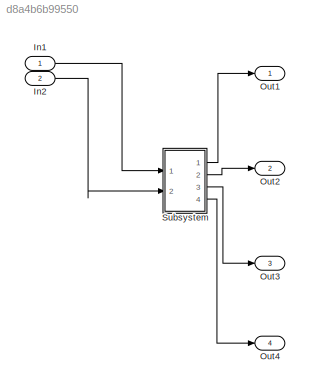
MODEL slx_d8a4b6b99550
KIND model
CONFIG AbsTol = auto
CONFIG EnableMultiTasking = off
CONFIG FixedStep = auto
CONFIG MaxStep = auto
CONFIG MinStep = auto
CONFIG RelTol = 1e-3
CONFIG SampleTimeConstraint = Unconstrained
CONFIG Solver = VariableStepAuto
CONFIG SolverName = VariableStepAuto
CONFIG StartTime = 0.0
CONFIG StopTime = 10.0
BLOCK [Inport] In1
  IconDisplay = Port number
BLOCK [Inport] In2
  IconDisplay = Port number
  Port = 2
BLOCK [Outport] Out1
  IconDisplay = Port number
BLOCK [Outport] Out2
  IconDisplay = Port number
  Port = 2
BLOCK [Outport] Out3
  IconDisplay = Port number
  Port = 3
BLOCK [Outport] Out4
  IconDisplay = Port number
  Port = 4
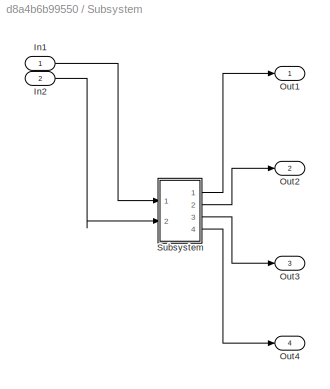
BLOCK [SubSystem] Subsystem
  Ports = [2, 4]
  RequestExecContextInheritance = off
BLOCK [Inport] Subsystem/In1
  IconDisplay = Port number
BLOCK [Inport] Subsystem/In2
  IconDisplay = Port number
  Port = 2
BLOCK [Outport] Subsystem/Out1
  IconDisplay = Port number
BLOCK [Outport] Subsystem/Out2
  IconDisplay = Port number
  Port = 2
BLOCK [Outport] Subsystem/Out3
  IconDisplay = Port number
  Port = 3
BLOCK [Outport] Subsystem/Out4
  IconDisplay = Port number
  Port = 4
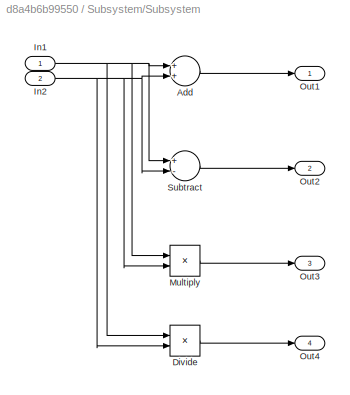
BLOCK [SubSystem] Subsystem/Subsystem
  Ports = [2, 4]
  RequestExecContextInheritance = off
BLOCK [Sum] Subsystem/Subsystem/Add
  InputSameDT = off
  OutDataTypeStr = Inherit: Inherit via internal rule
  Ports = [2, 1]
  SaturateOnIntegerOverflow = off
BLOCK [Product] Subsystem/Subsystem/Divide
  InputSameDT = off
  Inputs = */
  OutDataTypeStr = Inherit: Inherit via internal rule
  Ports = [2, 1]
  RndMeth = Floor
  SaturateOnIntegerOverflow = off
BLOCK [Inport] Subsystem/Subsystem/In1
  IconDisplay = Port number
BLOCK [Inport] Subsystem/Subsystem/In2
  IconDisplay = Port number
  Port = 2
BLOCK [Product] Subsystem/Subsystem/Multiply
  InputSameDT = off
  OutDataTypeStr = Inherit: Inherit via internal rule
  Ports = [2, 1]
  RndMeth = Floor
  SaturateOnIntegerOverflow = off
BLOCK [Outport] Subsystem/Subsystem/Out1
  IconDisplay = Port number
BLOCK [Outport] Subsystem/Subsystem/Out2
  IconDisplay = Port number
  Port = 2
BLOCK [Outport] Subsystem/Subsystem/Out3
  IconDisplay = Port number
  Port = 3
BLOCK [Outport] Subsystem/Subsystem/Out4
  IconDisplay = Port number
  Port = 4
BLOCK [Sum] Subsystem/Subsystem/Subtract
  InputSameDT = off
  Inputs = +-
  OutDataTypeStr = Inherit: Inherit via internal rule
  Ports = [2, 1]
  SaturateOnIntegerOverflow = off
LINE In1:1 -> Subsystem:1
LINE In2:1 -> Subsystem:2
LINE Subsystem/In1:1 -> Subsystem/Subsystem:1
LINE Subsystem/In2:1 -> Subsystem/Subsystem:2
LINE Subsystem/Subsystem/Add:1 -> Subsystem/Subsystem/Out1:1
LINE Subsystem/Subsystem/Divide:1 -> Subsystem/Subsystem/Out4:1
NET Subsystem/Subsystem/In1:1 -> Subsystem/Subsystem/Add:1, Subsystem/Subsystem/Divide:1, Subsystem/Subsystem/Multiply:1, Subsystem/Subsystem/Subtract:1
NET Subsystem/Subsystem/In2:1 -> Subsystem/Subsystem/Add:2, Subsystem/Subsystem/Divide:2, Subsystem/Subsystem/Multiply:2, Subsystem/Subsystem/Subtract:2
LINE Subsystem/Subsystem/Multiply:1 -> Subsystem/Subsystem/Out3:1
LINE Subsystem/Subsystem/Subtract:1 -> Subsystem/Subsystem/Out2:1
LINE Subsystem/Subsystem:1 -> Subsystem/Out1:1
LINE Subsystem/Subsystem:2 -> Subsystem/Out2:1
LINE Subsystem/Subsystem:3 -> Subsystem/Out3:1
LINE Subsystem/Subsystem:4 -> Subsystem/Out4:1
LINE Subsystem:1 -> Out1:1
LINE Subsystem:2 -> Out2:1
LINE Subsystem:3 -> Out3:1
LINE Subsystem:4 -> Out4:1
note: NET lines group one-source signal fan-out (src -> all destinations, sorted); 1:1 wires keep LINE
